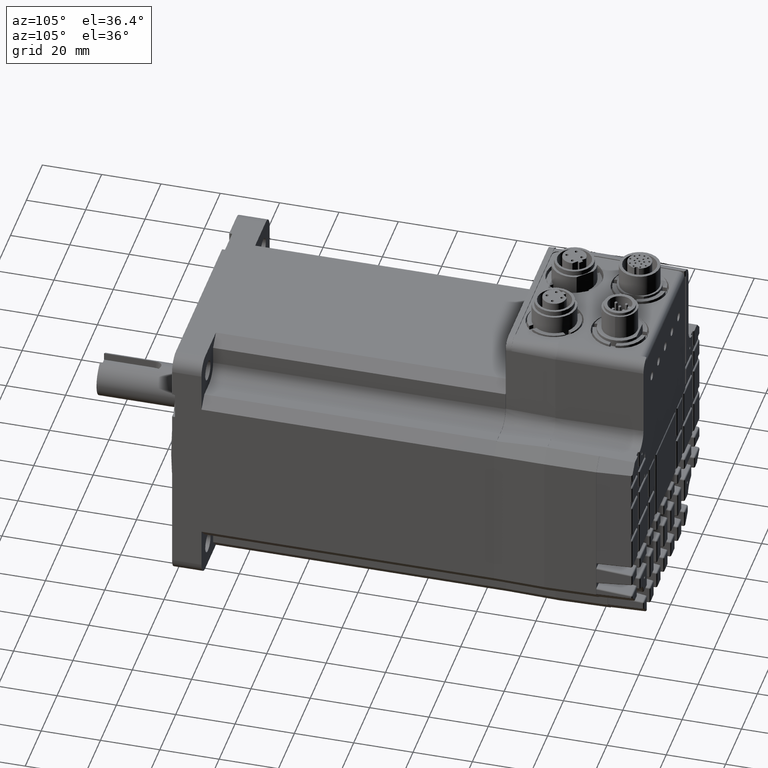
[diagram: clean part render]
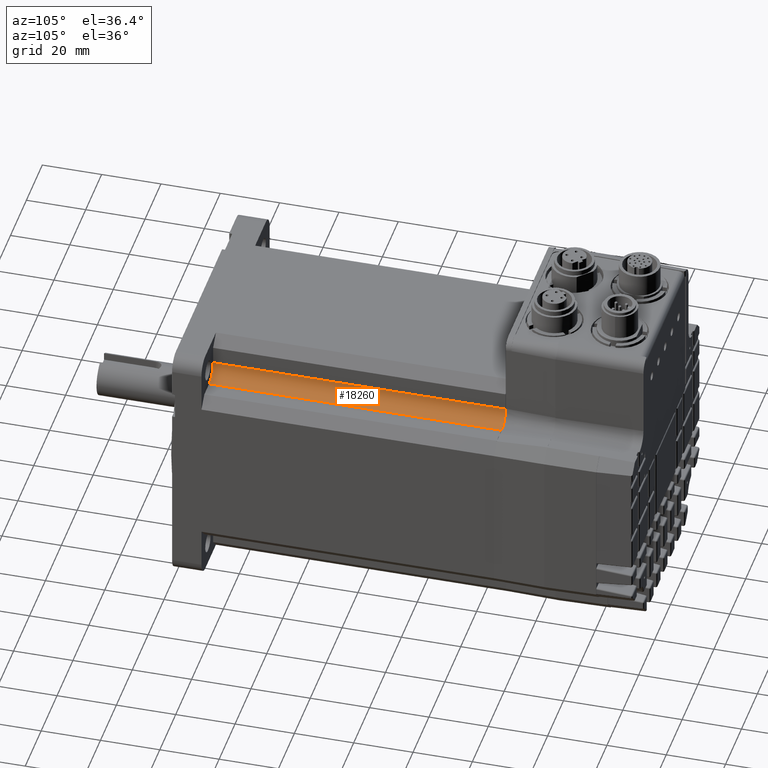
[diagram: same view with one face highlighted and labeled with its STEP entity id]
A machine part, auxiliary view. The second image highlights one B-rep face of the part: STEP entity #18260.
In plain terms, the highlighted cylindrical surface (edge-blend (fillet) strip) has radius 5 mm, axis along (0, -1, 0).
Its self-contained STEP definition (entity closure, byte-faithful):
#547=CIRCLE('',#19325,5.);
#548=CIRCLE('',#19326,5.);
#1202=CYLINDRICAL_SURFACE('',#19324,5.);
#1726=ORIENTED_EDGE('',*,*,#6432,.T.);
#1727=ORIENTED_EDGE('',*,*,#6406,.F.);
#1728=ORIENTED_EDGE('',*,*,#6433,.F.);
#1729=ORIENTED_EDGE('',*,*,#6376,.F.);
#6376=EDGE_CURVE('',#8738,#8739,#10228,.F.);
#6406=EDGE_CURVE('',#8768,#8769,#10250,.T.);
#6432=EDGE_CURVE('',#8738,#8769,#547,.T.);
#6433=EDGE_CURVE('',#8739,#8768,#548,.F.);
#8738=VERTEX_POINT('',#26579);
#8739=VERTEX_POINT('',#26581);
#8768=VERTEX_POINT('',#26648);
#8769=VERTEX_POINT('',#26649);
#10228=LINE('',#26580,#11618);
#10250=LINE('',#26647,#11640);
#11618=VECTOR('',#21285,1000.);
#11640=VECTOR('',#21339,1000.);
#12987=EDGE_LOOP('',(#1726,#1727,#1728,#1729));
#14196=FACE_BOUND('',#12987,.T.);
#18260=ADVANCED_FACE('',(#14196),#1202,.F.);
#19324=AXIS2_PLACEMENT_3D('',#26691,#21387,#21388);
#19325=AXIS2_PLACEMENT_3D('',#26692,#21389,#21390);
#19326=AXIS2_PLACEMENT_3D('',#26693,#21391,#21392);
#21285=DIRECTION('',(0.,1.,0.));
#21339=DIRECTION('',(0.,1.,0.));
#21387=DIRECTION('',(0.,-1.,0.));
#21388=DIRECTION('',(0.,0.,-1.));
#21389=DIRECTION('',(0.,1.,0.));
#21390=DIRECTION('',(0.,0.,1.));
#21391=DIRECTION('',(0.,-1.,0.));
#21392=DIRECTION('',(0.,0.,-1.));
#26579=CARTESIAN_POINT('',(80.265625,108.5,92.36375));
#26580=CARTESIAN_POINT('',(80.265625,9.91,92.36375));
#26581=CARTESIAN_POINT('',(80.265625,9.91,92.36375));
#26647=CARTESIAN_POINT('',(75.265625,48.,97.36375));
#26648=CARTESIAN_POINT('',(75.265625,9.91,97.36375));
#26649=CARTESIAN_POINT('',(75.265625,108.5,97.36375));
#26691=CARTESIAN_POINT('',(80.265625,-132.32266668009,97.36375));
#26692=CARTESIAN_POINT('',(80.265625,108.5,97.36375));
#26693=CARTESIAN_POINT('',(80.265625,9.91,97.36375));